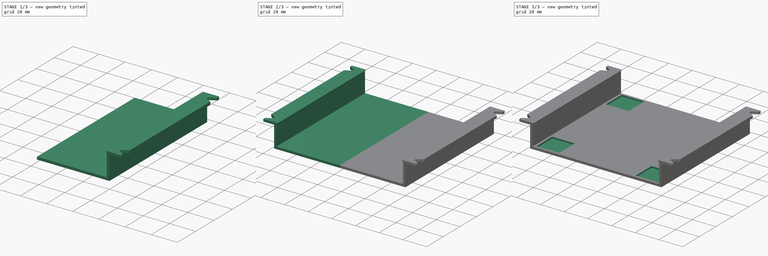
[diagram: build sequence overview — one tinted view per stage of 3, left to right]
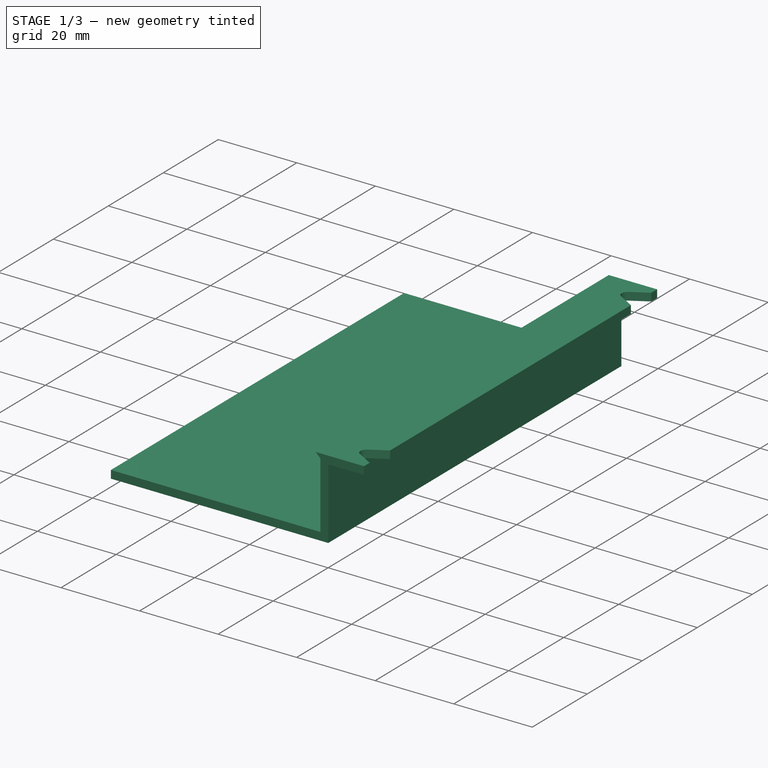
[diagram: stage 1 of 3 — iso view after this stage's code; geometry added in this stage tinted green]
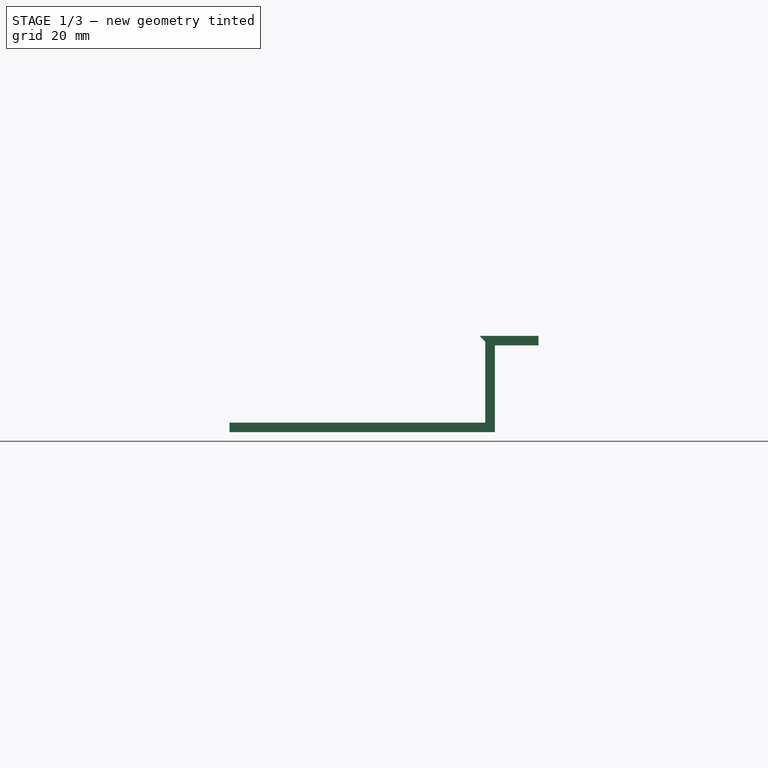
[diagram: stage 1 of 3 — front view after this stage's code; geometry added in this stage tinted green]
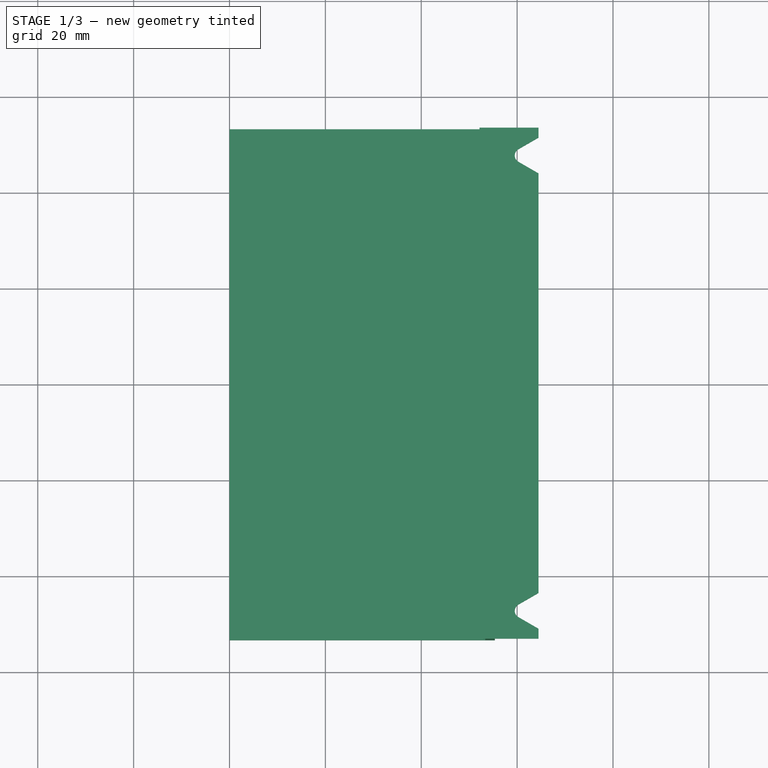
[diagram: stage 1 of 3 — top view after this stage's code; geometry added in this stage tinted green]
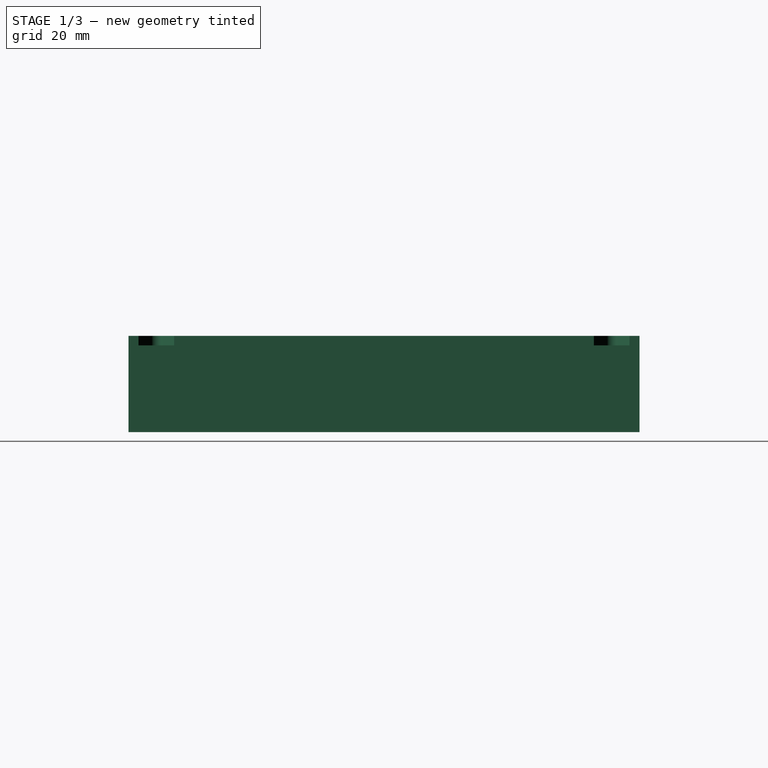
[diagram: stage 1 of 3 — right view after this stage's code; geometry added in this stage tinted green]
FCSTD DOCUMENT  (FreeCAD 0.21R33668 +26 (Git))
Label: EuTrack2.0
License: All rights reserved
LicenseURL: http://en.wikipedia.org/wiki/All_rights_reserved
objects: Sketcher::SketchObject×4, PartDesign::Pocket×3, PartDesign::Pad×1, PartDesign::Mirrored×1, App::VRMLObject×1, PartDesign::Body×1, Part::Feature×1
note: 15 computed .brp shape members not serialized (recipe doc carries the construction recipe); baked Part::Feature solids carry a one-line shape summary decoded from their .brp

FEATURE [Sketcher::SketchObject] Sketch
  FullyConstrained = true
  MapMode = 5
  Placement = pos=(0,0,0) rot=(1,0,0;1.5708rad)
  Support = -> [XZ_Plane]
  sketch-geometry (9):
    g0: LineSegment StartX=0 StartY=-2 StartZ=0 EndX=55.35 EndY=-2 EndZ=0
    g1: LineSegment StartX=55.35 StartY=-2 StartZ=0 EndX=55.35 EndY=16.1 EndZ=0
    g2: LineSegment StartX=55.35 StartY=16.1 StartZ=0 EndX=64.45 EndY=16.1 EndZ=0
    g3: LineSegment StartX=64.45 StartY=16.1 StartZ=0 EndX=64.45 EndY=18.1 EndZ=0
    g4: LineSegment StartX=64.45 StartY=18.1 StartZ=0 EndX=52.15 EndY=18.1 EndZ=0
    g5: LineSegment StartX=53.35 StartY=16.9 StartZ=0 EndX=53.35 EndY=0 EndZ=0
    g6: LineSegment StartX=53.35 StartY=0 StartZ=0 EndX=0 EndY=0 EndZ=0
    g7: LineSegment StartX=52.15 StartY=18.1 StartZ=0 EndX=53.35 EndY=16.9 EndZ=0
    g8: LineSegment StartX=0 StartY=0 StartZ=0 EndX=0 EndY=-2 EndZ=0
  constraints (27):
    c: Horizontal(g0)
    c: PointOnObject(g0,g-2)
    c: Coincident(g1,g0)
    c: Vertical(g1)
    c: Coincident(g2,g1)
    c: Horizontal(g2)
    c: Coincident(g3,g2)
    c: Vertical(g3)
    c: Coincident(g4,g3)
    c: Horizontal(g4)
    c: Vertical(g5)
    c: Coincident(g6,g5)
    c: PointOnObject(g6,g-2)
    c: Horizontal(g6)
    c: Distance(g6) = 53.35
    c: DistanceY(g3,g3) = 2
    c: Coincident(g5,g7)
    c: Coincident(g8,g6)
    c: Coincident(g8,g0)
    c: Distance(g5) = 16.9
    c: DistanceY(g8,g8) = 2
    c: DistanceY(g5,g4) = 1.2
    c: PointOnObject(g6,g-1)
    c: Coincident(g7,g4)
    c: Angle(g7,g4) = 0.785398
    c: DistanceX(g5,g0) = 2
    c: DistanceX(g6,g3) = 64.45
FEATURE [PartDesign::Pad] Pad
  Direction = (0,-1,-2e-16)
  Length = 106.6
  Length2 = 10
  Midplane = true
  Placement = pos=(0,0,0) rot=(1,0,0;1.5708rad)
  Profile = -> Sketch
  ReferenceAxis = -> Sketch [N_Axis]
  Type = 0
FEATURE [Sketcher::SketchObject] Sketch001
  FullyConstrained = true
  MapMode = 5
  Placement = pos=(0,-4e-15,18.6) rot=(0,0,1;3.14159rad)
  sketch-geometry (16):
    g0: ArcOfCircle CenterX=-61 CenterY=47.5 CenterZ=0 NormalX=0 NormalY=0 NormalZ=1 AngleXU=0 Radius=1.5 StartAngle=5.23599 EndAngle=7.33038
    g1: ArcOfCircle CenterX=-61 CenterY=-47.5 CenterZ=0 NormalX=0 NormalY=0 NormalZ=1 AngleXU=0 Radius=1.5 StartAngle=5.23599 EndAngle=7.33038
    g2: LineSegment StartX=-60.25 StartY=-46.201 StartZ=0 EndX=-66.6603 EndY=-42.5 EndZ=0
    g3: LineSegment StartX=-66.6603 StartY=-42.5 StartZ=0 EndX=-66.6603 EndY=-52.5 EndZ=0
    g4: LineSegment StartX=-66.6603 StartY=-52.5 StartZ=0 EndX=-60.25 EndY=-48.799 EndZ=0
    g5: LineSegment StartX=-66.6603 StartY=-52.5 StartZ=0 EndX=-61 EndY=-47.5 EndZ=0
    g6: LineSegment StartX=-66.6603 StartY=-42.5 StartZ=0 EndX=-61 EndY=-47.5 EndZ=0
    g7: LineSegment StartX=-60.25 StartY=-48.799 StartZ=0 EndX=-60.25 EndY=-46.201 EndZ=0
    g8: LineSegment StartX=-60.25 StartY=46.201 StartZ=0 EndX=-66.6603 EndY=42.5 EndZ=0
    g9: LineSegment StartX=-66.6603 StartY=42.5 StartZ=0 EndX=-66.6603 EndY=52.5 EndZ=0
    g10: LineSegment StartX=-66.6603 StartY=52.5 StartZ=0 EndX=-60.25 EndY=48.799 EndZ=0
    g11: LineSegment StartX=-60.25 StartY=46.201 StartZ=0 EndX=-60.25 EndY=48.799 EndZ=0
    g12: LineSegment StartX=-66.6603 StartY=42.5 StartZ=0 EndX=-61 EndY=47.5 EndZ=0
    g13: LineSegment StartX=-66.6603 StartY=52.5 StartZ=0 EndX=-61 EndY=47.5 EndZ=0
    g14: LineSegment StartX=-61 StartY=47.5 StartZ=0 EndX=0 EndY=0 EndZ=0
    g15: LineSegment StartX=0 StartY=0 StartZ=0 EndX=-61 EndY=-47.5 EndZ=0
  constraints (40):
    c: Vertical(g0,g1)
    c: DistanceX(g-2,g1) = -61
    c: Diameter(g0) = 3
    c: Distance(g0,g1) = 95
    c: Coincident(g3,g2)
    c: Vertical(g3)
    c: Coincident(g4,g3)
    c: Coincident(g5,g3)
    c: Coincident(g5,g1)
    c: Coincident(g6,g2)
    c: Coincident(g6,g1)
    c: Equal(g6,g5)
    c: Coincident(g7,g4)
    c: Coincident(g7,g2)
    c: Vertical(g7)
    c: Coincident(g1,g4)
    c: Coincident(g9,g8)
    c: Vertical(g9)
    c: Coincident(g10,g9)
    c: Coincident(g11,g8)
    c: Coincident(g11,g10)
    c: Vertical(g11)
    c: Coincident(g12,g8)
    c: Coincident(g12,g0)
    c: Coincident(g13,g9)
    c: Coincident(g13,g0)
    c: Equal(g13,g12)
    c: Distance(g9) = 10
    c: Coincident(g0,g8)
    c: Coincident(g14,g0)
    c: Coincident(g14,g15)
    c: Coincident(g15,g1)
    c: Equal(g15,g14)
    c: Tangent(g0,g10) = 1.5708
    c: Tangent(g1,g2) = -1.5708
    c: Equal(g3,g9)
    c: Angle(g2) = 2.61799
    c: Parallel(g10,g2)
    c: Coincident(g14,g-1)
    c: Equal(g1,g0)
FEATURE [PartDesign::Pocket] Pocket
  BaseFeature = -> Pad
  Direction = (0,0,-1)
  Length = 0
  Length2 = 5
  Offset = 2
  Placement = pos=(0,0,0) rot=(1,0,0;1.5708rad)
  Profile = -> Sketch001
  ReferenceAxis = -> Sketch001 [N_Axis]
  Type = 2
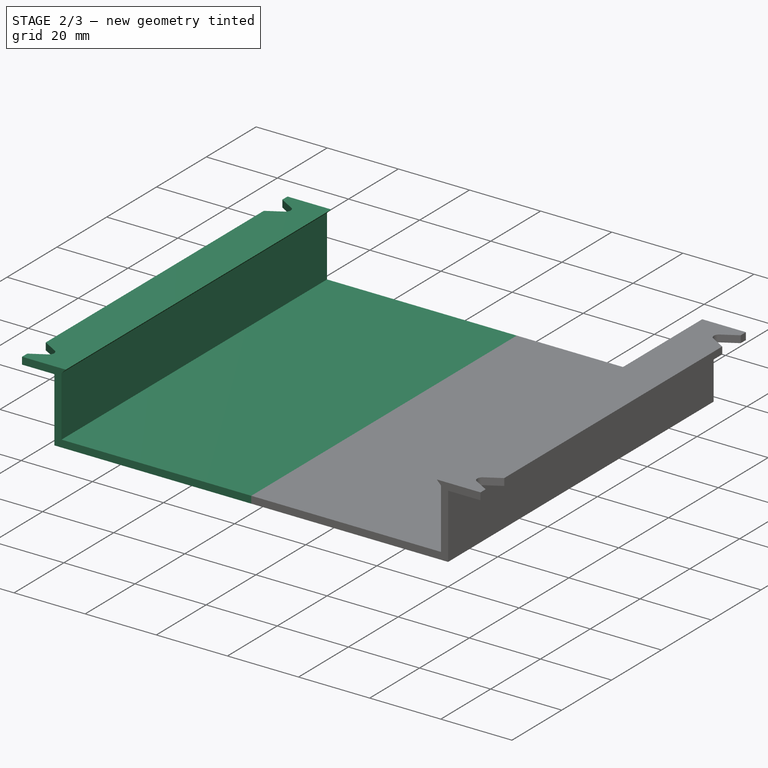
[diagram: stage 2 of 3 — iso view after this stage's code; geometry added in this stage tinted green]
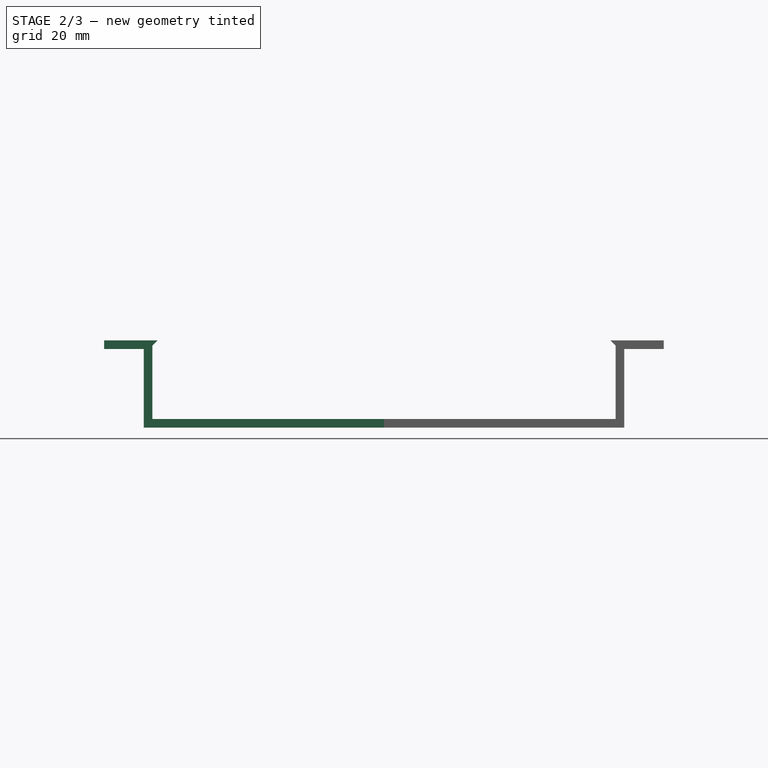
[diagram: stage 2 of 3 — front view after this stage's code; geometry added in this stage tinted green]
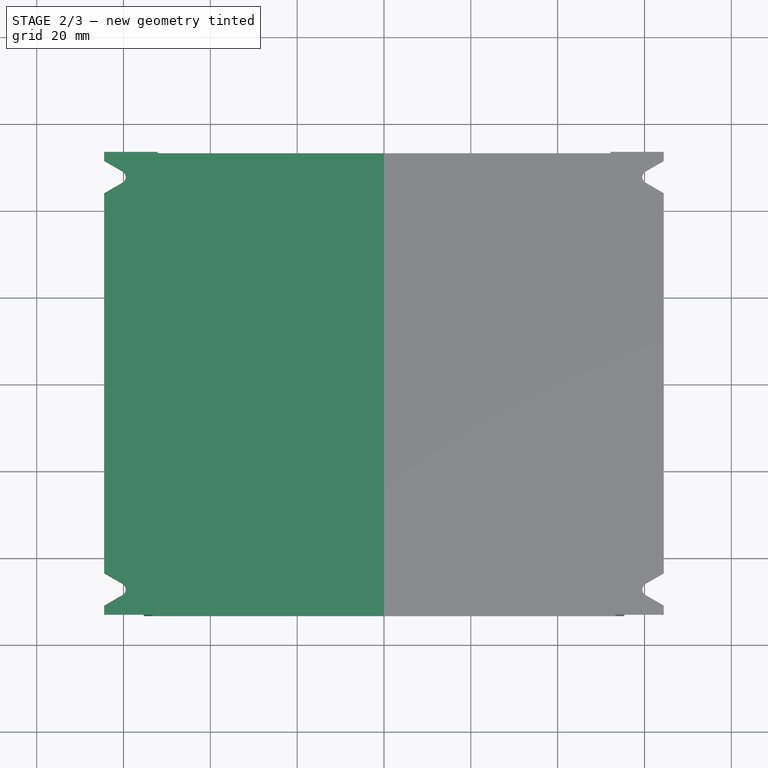
[diagram: stage 2 of 3 — top view after this stage's code; geometry added in this stage tinted green]
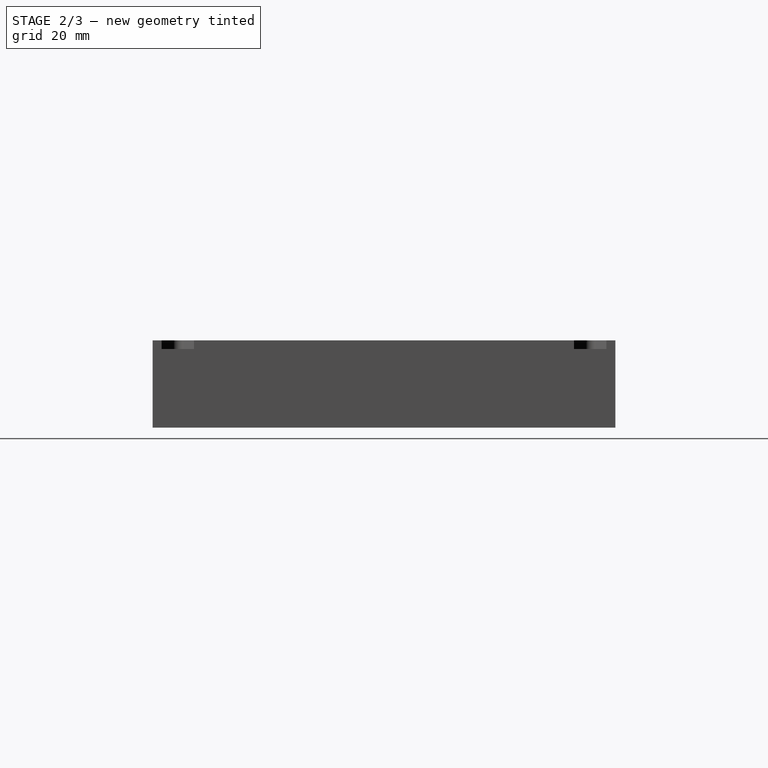
[diagram: stage 2 of 3 — right view after this stage's code; geometry added in this stage tinted green]
FEATURE [PartDesign::Mirrored] Mirrored
  BaseFeature = -> Pocket
  MirrorPlane = -> Sketch [V_Axis]
  Originals = -> [Pad,Pocket]
  Placement = pos=(0,0,0) rot=(1,0,0;1.5708rad)
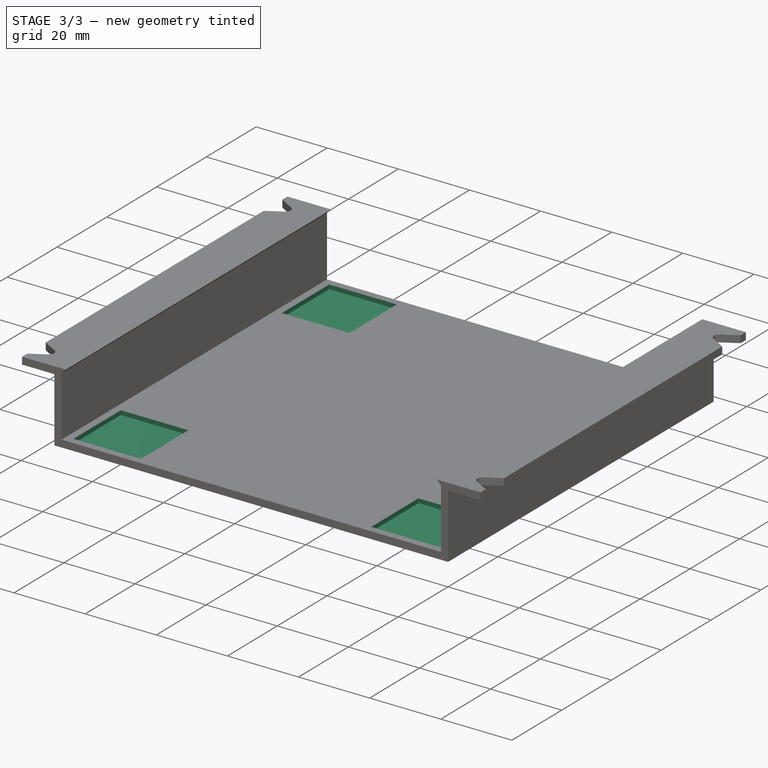
[diagram: stage 3 of 3 — iso view after this stage's code; geometry added in this stage tinted green]
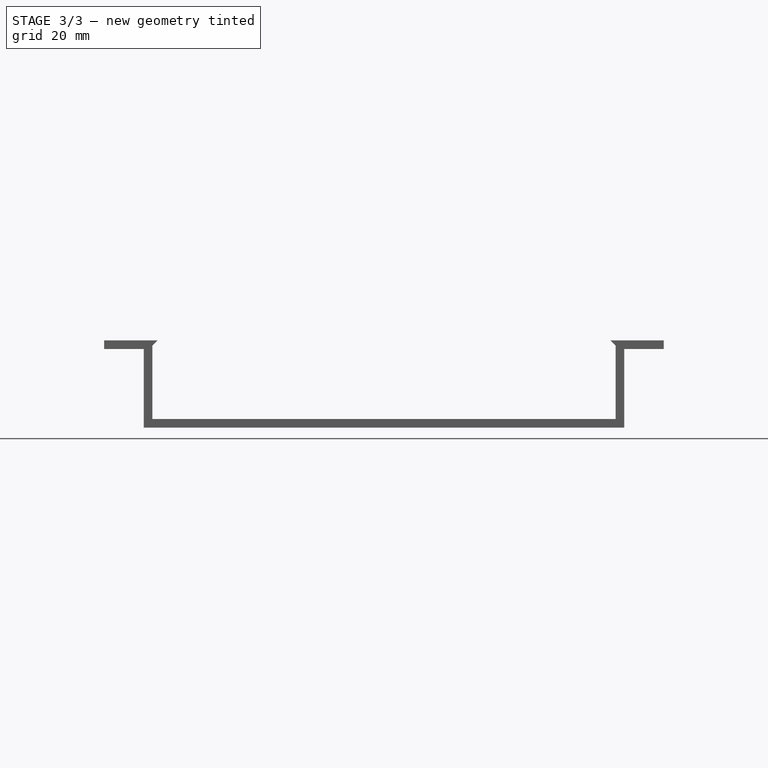
[diagram: stage 3 of 3 — front view after this stage's code; geometry added in this stage tinted green]
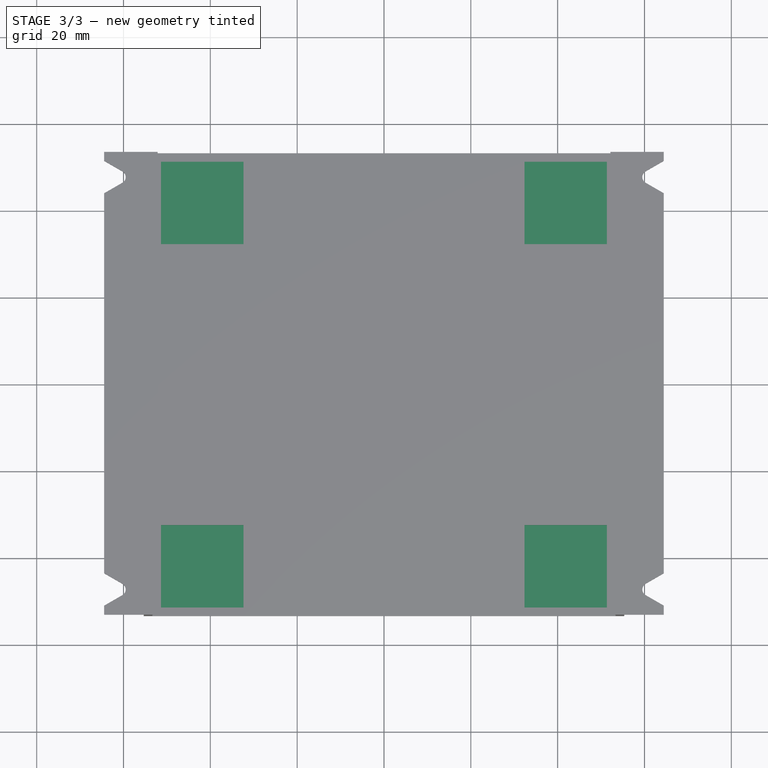
[diagram: stage 3 of 3 — top view after this stage's code; geometry added in this stage tinted green]
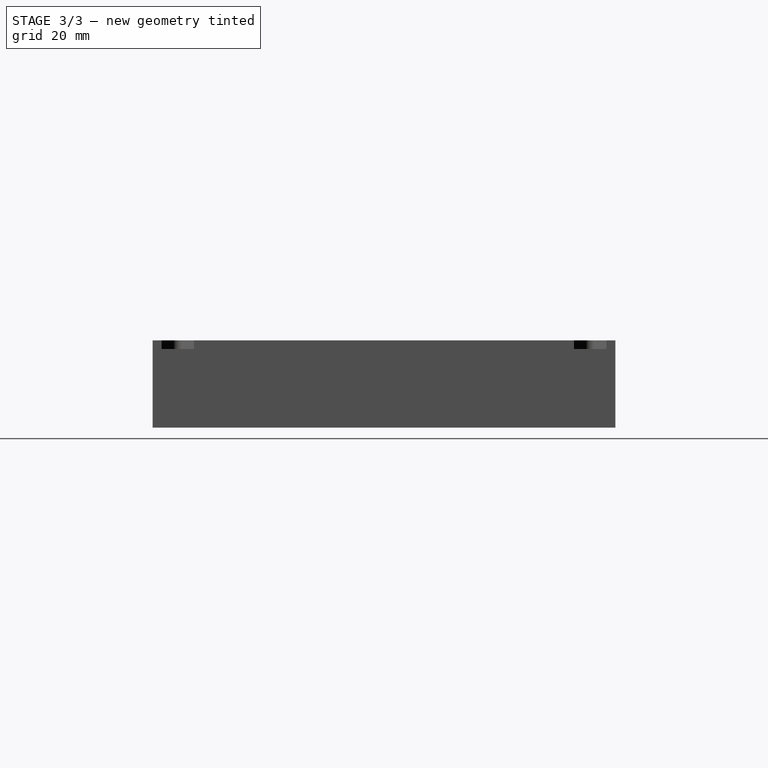
[diagram: stage 3 of 3 — right view after this stage's code; geometry added in this stage tinted green]
FEATURE [Sketcher::SketchObject] Sketch003
  FullyConstrained = true
  Placement = pos=(0,0,0) rot=(0,0,1;3.14159rad)
  Support = -> [Origin,XY_Plane]
  sketch-geometry (27):
    g0: LineSegment StartX=32.35 StartY=51.35 StartZ=0 EndX=32.35 EndY=32.35 EndZ=0
    g1: LineSegment StartX=32.35 StartY=32.35 StartZ=0 EndX=51.35 EndY=32.35 EndZ=0
    g2: LineSegment StartX=51.35 StartY=32.35 StartZ=0 EndX=51.35 EndY=51.35 EndZ=0
    g3: LineSegment StartX=51.35 StartY=51.35 StartZ=0 EndX=32.35 EndY=51.35 EndZ=0
    g4: GeomPoint X=41.85 Y=41.85 Z=0
    g5: LineSegment StartX=-51.35 StartY=51.35 StartZ=0 EndX=-51.35 EndY=32.35 EndZ=0
    g6: LineSegment StartX=-51.35 StartY=32.35 StartZ=0 EndX=-32.35 EndY=32.35 EndZ=0
    g7: LineSegment StartX=-32.35 StartY=32.35 StartZ=0 EndX=-32.35 EndY=51.35 EndZ=0
    g8: LineSegment StartX=-32.35 StartY=51.35 StartZ=0 EndX=-51.35 EndY=51.35 EndZ=0
    g9: GeomPoint X=-41.85 Y=41.85 Z=0
    g10: LineSegment StartX=-51.35 StartY=-32.35 StartZ=0 EndX=-51.35 EndY=-51.35 EndZ=0
    g11: LineSegment StartX=-51.35 StartY=-51.35 StartZ=0 EndX=-32.35 EndY=-51.35 EndZ=0
    g12: LineSegment StartX=-32.35 StartY=-51.35 StartZ=0 EndX=-32.35 EndY=-32.35 EndZ=0
    g13: LineSegment StartX=-32.35 StartY=-32.35 StartZ=0 EndX=-51.35 EndY=-32.35 EndZ=0
    g14: GeomPoint X=-41.85 Y=-41.85 Z=0
    g15: LineSegment StartX=32.35 StartY=-32.35 StartZ=0 EndX=32.35 EndY=-51.35 EndZ=0
    g16: LineSegment StartX=32.35 StartY=-51.35 StartZ=0 EndX=51.35 EndY=-51.35 EndZ=0
    g17: LineSegment StartX=51.35 StartY=-51.35 StartZ=0 EndX=51.35 EndY=-32.35 EndZ=0
    g18: LineSegment StartX=51.35 StartY=-32.35 StartZ=0 EndX=32.35 EndY=-32.35 EndZ=0
    g19: GeomPoint X=41.85 Y=-41.85 Z=0
    g20: LineSegment StartX=-41.85 StartY=41.85 StartZ=0 EndX=41.85 EndY=41.85 EndZ=0
    g21: LineSegment StartX=41.85 StartY=41.85 StartZ=0 EndX=41.85 EndY=-41.85 EndZ=0
    g22: LineSegment StartX=41.85 StartY=-41.85 StartZ=0 EndX=-41.85 EndY=-41.85 EndZ=0
    g23: LineSegment StartX=-41.85 StartY=-41.85 StartZ=0 EndX=-41.85 EndY=41.85 EndZ=0
    g24: LineSegment StartX=-41.85 StartY=41.85 StartZ=0 EndX=0 EndY=0 EndZ=0
    g25: LineSegment StartX=0 StartY=0 StartZ=0 EndX=41.85 EndY=41.85 EndZ=0
    g26: LineSegment StartX=0 StartY=0 StartZ=0 EndX=-41.85 EndY=-41.85 EndZ=0
  constraints (66):
    c: Coincident(g0,g1)
    c: Coincident(g1,g2)
    c: Coincident(g2,g3)
    c: Coincident(g3,g0)
    c: Horizontal(g1)
    c: Horizontal(g3)
    c: Vertical(g0)
    c: Vertical(g2)
    c: Symmetric(g1,g0,g4)
    c: Coincident(g5,g6)
    c: Coincident(g6,g7)
    c: Coincident(g7,g8)
    c: Coincident(g8,g5)
    c: Horizontal(g6)
    c: Horizontal(g8)
    c: Vertical(g5)
    c: Vertical(g7)
    c: Symmetric(g6,g5,g9)
    c: Coincident(g10,g11)
    c: Coincident(g11,g12)
    c: Coincident(g12,g13)
    c: Coincident(g13,g10)
    c: Horizontal(g11)
    c: Horizontal(g13)
    c: Vertical(g10)
    c: Vertical(g12)
    c: Symmetric(g11,g10,g14)
    c: Coincident(g15,g16)
    c: Coincident(g16,g17)
    c: Coincident(g17,g18)
    c: Coincident(g18,g15)
    c: Horizontal(g16)
    c: Horizontal(g18)
    c: Vertical(g15)
    c: Vertical(g17)
    c: Symmetric(g16,g15,g19)
    c: DistanceX(g18,g18) = 19
    c: Coincident(g20,g21)
    c: Coincident(g21,g22)
    c: Coincident(g22,g23)
    c: Coincident(g23,g20)
    c: Horizontal(g20)
    c: Horizontal(g22)
    c: Vertical(g21)
    c: Vertical(g23)
    c: Coincident(g20,g9)
    c: Coincident(g21,g19)
    c: Equal(g20,g21)
    c: DistanceX(g20,g20) = 83.7
    c: Coincident(g14,g22)
    c: Coincident(g4,g20)
    c: Equal(g8,g5)
    c: Equal(g0,g3)
    c: Equal(g3,g15)
    c: Equal(g15,g18)
    c: Equal(g18,g10)
    c: Equal(g10,g13)
    c: Equal(g13,g8)
    c: Coincident(g24,g9)
    c: Coincident(g24,g-1)
    c: Coincident(g24,g25)
    c: Coincident(g25,g4)
    c: Coincident(g24,g26)
    c: Coincident(g26,g14)
    c: Equal(g26,g24)
    c: Equal(g24,g25)
FEATURE [PartDesign::Pocket] Pocket001
  BaseFeature = -> Mirrored
  Direction = (0,0,-1)
  Length = 1.2
  Length2 = 5
  Placement = pos=(0,0,0) rot=(1,0,0;1.5708rad)
  Profile = -> Sketch003
  ReferenceAxis = -> Sketch003 [N_Axis]
  Type = 0
FEATURE [App::VRMLObject] grid_euro_adapter
  Placement = pos=(-73,-53,0) rot=(0,0,1;1.5708rad)
FEATURE [Sketcher::SketchObject] Sketch005
  FullyConstrained = true
  MapMode = 5
  Placement = pos=(-55.35,0,0) rot=(0.707107,0,-0.707107;3.14159rad)
  Support = -> [Pocket001]
  sketch-geometry (7):
    g0: LineSegment StartX=6 StartY=-16.9697 StartZ=0 EndX=-13 EndY=-6 EndZ=0
    g1: LineSegment StartX=-13 StartY=-6 StartZ=0 EndX=-13 EndY=6 EndZ=0
    g2: LineSegment StartX=-13 StartY=6 StartZ=0 EndX=6 EndY=16.9697 EndZ=0
    g3: LineSegment StartX=6 StartY=16.9697 StartZ=0 EndX=6 EndY=-16.9697 EndZ=0
    g4: LineSegment StartX=-13 StartY=-6 StartZ=0 EndX=6 EndY=0 EndZ=0
    g5: LineSegment StartX=6 StartY=0 StartZ=0 EndX=-13 EndY=6 EndZ=0
    g6: LineSegment StartX=6 StartY=0 StartZ=0 EndX=0 EndY=0 EndZ=0
  constraints (19):
    c: Coincident(g6,g4)
    c: Horizontal(g6)
    c: Coincident(g0,g4)
    c: Coincident(g1,g5)
    c: Equal(g2,g0)
    c: Coincident(g1,g0)
    c: Coincident(g1,g2)
    c: Coincident(g3,g2)
    c: Coincident(g4,g5)
    c: Equal(g4,g5)
    c: Vertical(g1)
    c: Coincident(g3,g0)
    c: PointOnObject(g4,g3)
    c: Vertical(g3)
    c: DistanceX(g1,g6) = 13
    c: DistanceX(g6,g4) = 6
    c: DistanceY(g1,g1) = 12
    c: Angle(g2,g-2) = 1.0472
    c: Coincident(g6,g-1)
FEATURE [PartDesign::Pocket] Pocket002
  BaseFeature = -> Pocket001
  Direction = (1,0,2e-16)
  Length = 1.5
  Length2 = 5
  Placement = pos=(0,0,0) rot=(1,0,0;1.5708rad)
  Profile = -> Sketch005
  ReferenceAxis = -> Sketch005 [N_Axis]
  Type = 0
FEATURE [PartDesign::Body] Body
  Group = -> [Sketch,Pad,Sketch001,Pocket,Mirrored,Sketch003,Pocket001,Sketch005,Pocket002]
  Origin = -> Origin
  Tip = -> Pocket002
FEATURE [Part::Feature] Part__Feature  label="G4_Unibody"
  Placement = pos=(0,0,15.9) rot=(0,0,1;1.5708rad)
  shape: bbox 164.7 x 164.7 x 137 mm, 1011 faces (baked)
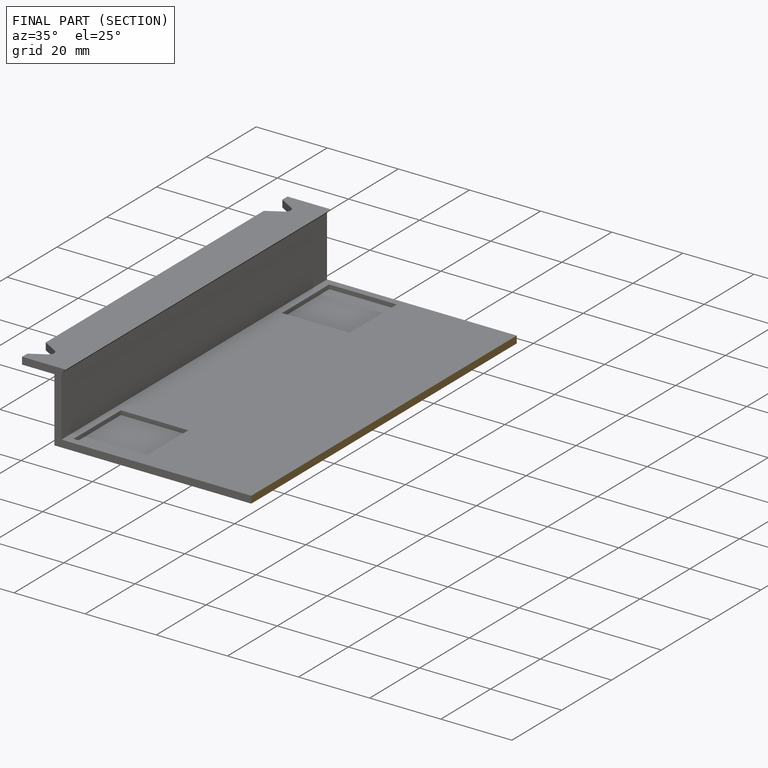
[diagram: finished part — half-section view (interior)]
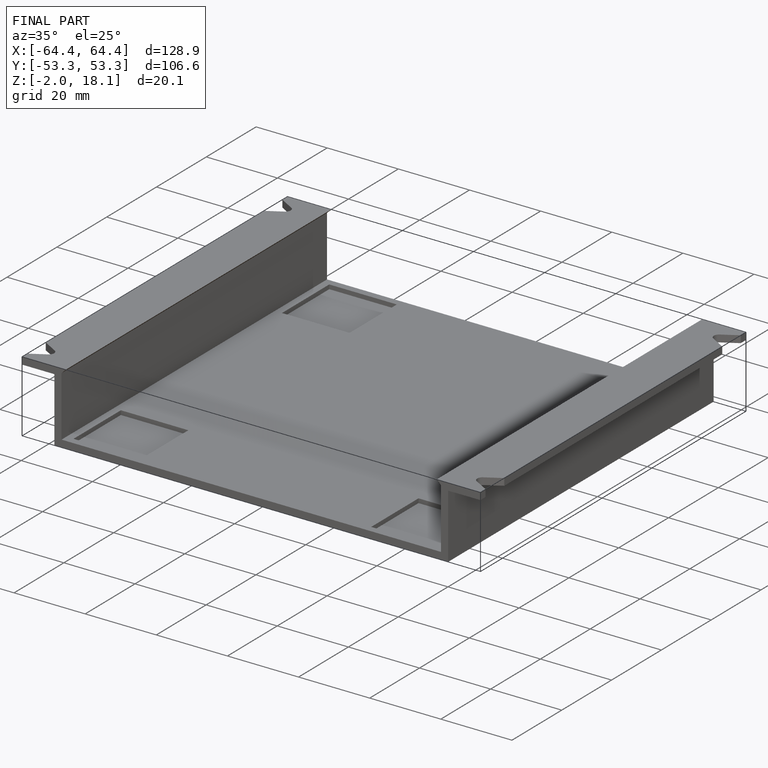
[diagram: finished part — iso view with bounding-box wireframe]
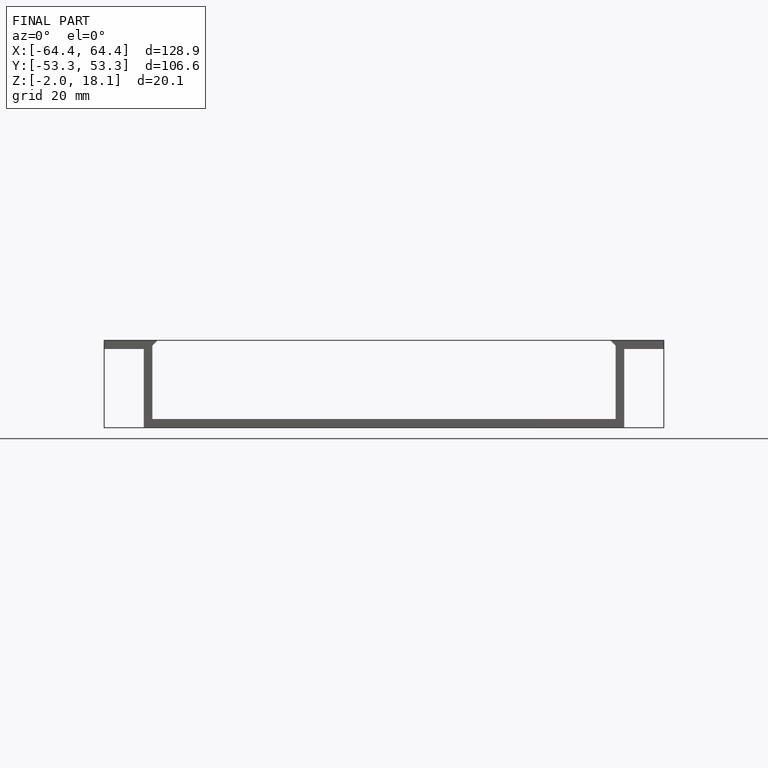
[diagram: finished part — front view with bounding-box wireframe]
